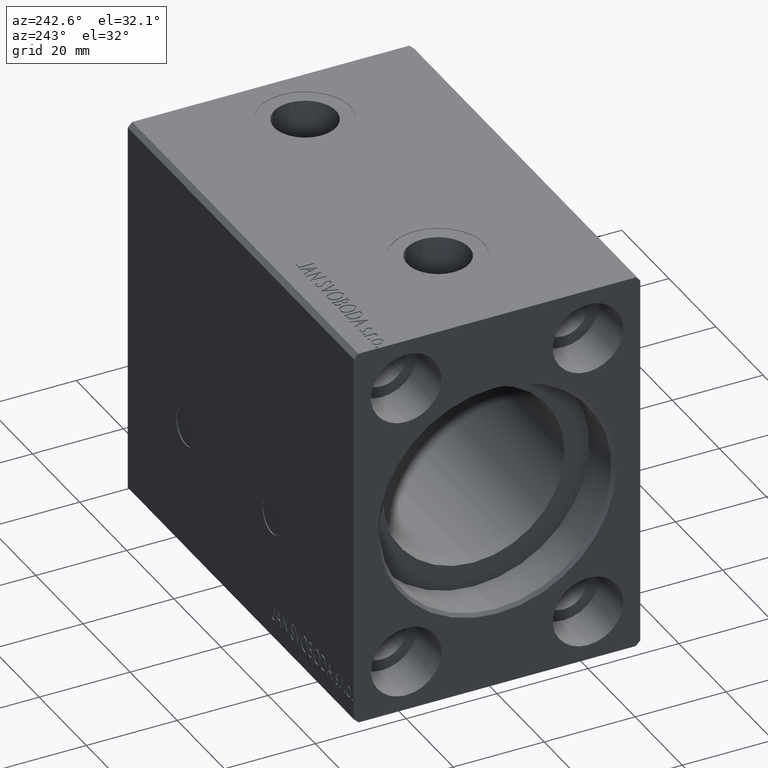
[diagram: clean part render]
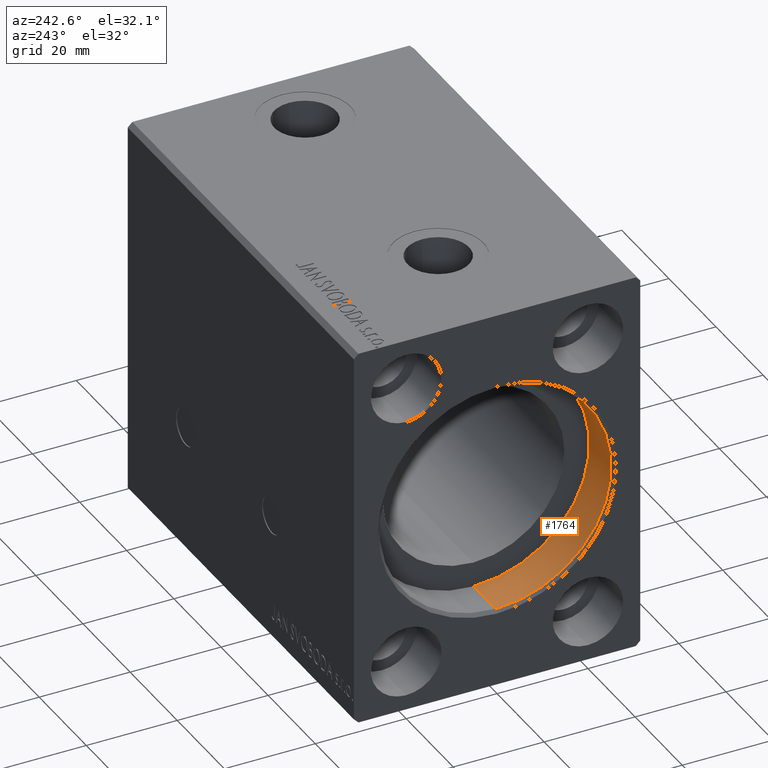
[diagram: same view with one face highlighted and labeled with its STEP entity id]
A machine part, auxiliary view. The second image highlights one B-rep face of the part: STEP entity #1764.
In plain terms, the highlighted cylindrical surface (partial cylindrical patch) has radius 25.5 mm, axis along (-1, -0, -0).
Its self-contained STEP definition (entity closure, byte-faithful):
#665 = CYLINDRICAL_SURFACE ( 'NONE', #20207, 25.50000000000000000 ) ;
#1764 = ADVANCED_FACE ( 'NONE', ( #20871 ), #665, .F. ) ;
#2033 = DIRECTION ( 'NONE',  ( -1.000000000000000000, -0.000000000000000000, -0.000000000000000000 ) ) ;
#2936 = DIRECTION ( 'NONE',  ( -1.000000000000000000, 0.000000000000000000, 0.000000000000000000 ) ) ;
#3869 = ORIENTED_EDGE ( 'NONE', *, *, #21313, .F. ) ;
#4354 = VERTEX_POINT ( 'NONE', #16245 ) ;
#6275 = VERTEX_POINT ( 'NONE', #38301 ) ;
#11014 = CIRCLE ( 'NONE', #34329, 25.50000000000000000 ) ;
#12193 = EDGE_LOOP ( 'NONE', ( #3869, #35461, #30092, #29663 ) ) ;
#13547 = DIRECTION ( 'NONE',  ( 0.000000000000000000, 0.000000000000000000, 1.000000000000000000 ) ) ;
#14030 = VECTOR ( 'NONE', #2033, 1000.000000000000000 ) ;
#15368 = CARTESIAN_POINT ( 'NONE',  ( 0.6999999999999784173, 0.000000000000000000, 25.50000000000000000 ) ) ;
#15878 = VERTEX_POINT ( 'NONE', #41296 ) ;
#16245 = CARTESIAN_POINT ( 'NONE',  ( 10.00000000000000000, 3.122849337825750222E-15, -25.50000000000000000 ) ) ;
#17001 = CARTESIAN_POINT ( 'NONE',  ( 10.00000000000000000, 0.000000000000000000, 0.000000000000000000 ) ) ;
#18612 = EDGE_CURVE ( 'NONE', #6275, #29494, #21606, .T. ) ;
#18706 = VECTOR ( 'NONE', #21923, 1000.000000000000000 ) ;
#18905 = CARTESIAN_POINT ( 'NONE',  ( 10.00000000000000000, 3.122849337825750222E-15, -25.50000000000000000 ) ) ;
#20207 = AXIS2_PLACEMENT_3D ( 'NONE', #17001, #20651, #23883 ) ;
#20297 = AXIS2_PLACEMENT_3D ( 'NONE', #36540, #32676, #13547 ) ;
#20651 = DIRECTION ( 'NONE',  ( -1.000000000000000000, -0.000000000000000000, -0.000000000000000000 ) ) ;
#20871 = FACE_OUTER_BOUND ( 'NONE', #12193, .T. ) ;
#21313 = EDGE_CURVE ( 'NONE', #4354, #6275, #34682, .T. ) ;
#21606 = LINE ( 'NONE', #38543, #14030 ) ;
#21923 = DIRECTION ( 'NONE',  ( -1.000000000000000000, -0.000000000000000000, -0.000000000000000000 ) ) ;
#23883 = DIRECTION ( 'NONE',  ( 0.000000000000000000, 0.000000000000000000, 1.000000000000000000 ) ) ;
#28948 = DIRECTION ( 'NONE',  ( 0.000000000000000000, 0.000000000000000000, -1.000000000000000000 ) ) ;
#29494 = VERTEX_POINT ( 'NONE', #15368 ) ;
#29663 = ORIENTED_EDGE ( 'NONE', *, *, #18612, .F. ) ;
#30092 = ORIENTED_EDGE ( 'NONE', *, *, #36878, .T. ) ;
#31586 = LINE ( 'NONE', #18905, #18706 ) ;
#32164 = CARTESIAN_POINT ( 'NONE',  ( 0.6999999999999784173, 0.000000000000000000, 0.000000000000000000 ) ) ;
#32676 = DIRECTION ( 'NONE',  ( -1.000000000000000000, 0.000000000000000000, 0.000000000000000000 ) ) ;
#34329 = AXIS2_PLACEMENT_3D ( 'NONE', #32164, #2936, #28948 ) ;
#34682 = CIRCLE ( 'NONE', #20297, 25.50000000000000000 ) ;
#35461 = ORIENTED_EDGE ( 'NONE', *, *, #39382, .T. ) ;
#36540 = CARTESIAN_POINT ( 'NONE',  ( 10.00000000000000000, 0.000000000000000000, 0.000000000000000000 ) ) ;
#36878 = EDGE_CURVE ( 'NONE', #15878, #29494, #11014, .T. ) ;
#38301 = CARTESIAN_POINT ( 'NONE',  ( 10.00000000000000000, 0.000000000000000000, 25.50000000000000000 ) ) ;
#38543 = CARTESIAN_POINT ( 'NONE',  ( 10.00000000000000000, 0.000000000000000000, 25.50000000000000000 ) ) ;
#39382 = EDGE_CURVE ( 'NONE', #4354, #15878, #31586, .T. ) ;
#41296 = CARTESIAN_POINT ( 'NONE',  ( 0.6999999999999784173, 3.122849337825750222E-15, -25.50000000000000000 ) ) ;